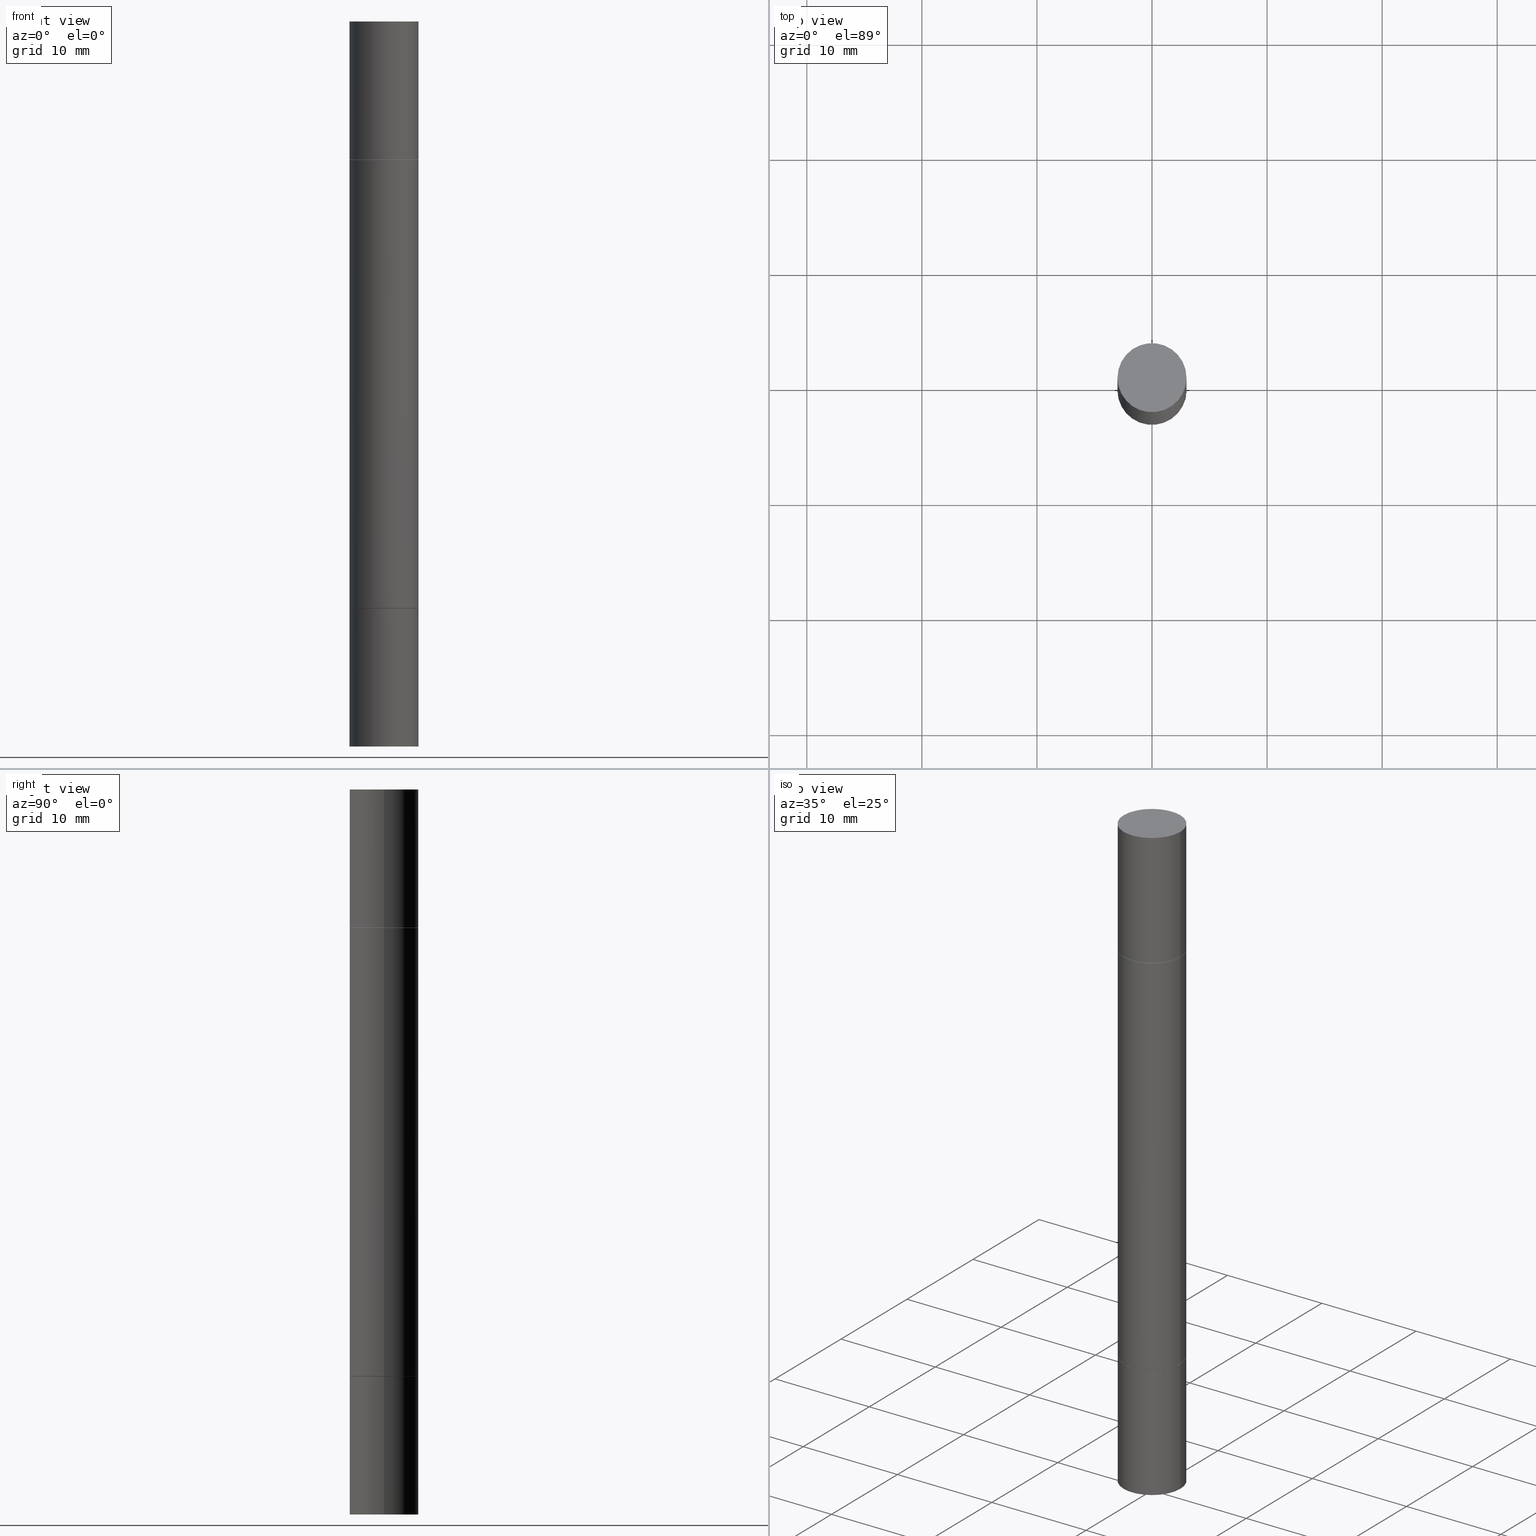
[diagram: canonical four-view strip — front | top / right | iso, engineering-drawing reading convention]
A machine part, canonical four-view strip (front | top / right | iso — engineering-drawing reading convention). The complete STEP part file that produces these views, byte-faithful:
ISO-10303-21;
HEADER;
FILE_DESCRIPTION (( 'STEP AP203' ),
    '1' );
FILE_NAME ('49061.STEP',
    '2024-03-04T15:54:00',
    ( '' ),
    ( '' ),
    'SwSTEP 2.0',
    'SolidWorks 2023',
    '' );
FILE_SCHEMA (( 'CONFIG_CONTROL_DESIGN' ));
ENDSEC;

DATA;
#1 = CARTESIAN_POINT ( 'NONE',  ( 4.910256815939135870E-29, -1.648293968897468754E-15, -0.4723999999999998756 ) ) ;
#2 = AXIS2_PLACEMENT_3D ( 'NONE', #598, #449, #675 ) ;
#3 = VECTOR ( 'NONE', #420, 39.37007874015748143 ) ;
#4 = CARTESIAN_POINT ( 'NONE',  ( 0.1180999999999999966, -7.831741791159056177E-15, -2.006899999999999906 ) ) ;
#5 = PERSON_AND_ORGANIZATION ( #347, #374 ) ;
#6 = LINE ( 'NONE', #263, #514 ) ;
#7 = DIRECTION ( 'NONE',  ( 1.000000000000000000, -6.982962677686271444E-15, 0.000000000000000000 ) ) ;
#8 = CARTESIAN_POINT ( 'NONE',  ( 0.000000000000000000, 0.000000000000000000, 0.000000000000000000 ) ) ;
#9 = CIRCLE ( 'NONE', #289, 0.1180999999999999966 ) ;
#10 = CARTESIAN_POINT ( 'NONE',  ( 4.910256815939136430E-29, -1.648293968897467768E-15, -0.4723999999999995980 ) ) ;
#11 = AXIS2_PLACEMENT_3D ( 'NONE', #199, #602, #141 ) ;
#12 = SECURITY_CLASSIFICATION ( '', '', #627 ) ;
#13 = ORIENTED_EDGE ( 'NONE', *, *, #468, .T. ) ;
#14 = DIRECTION ( 'NONE',  ( 0.000000000000000000, 1.000000000000000000, -4.626330217890374069E-15 ) ) ;
#15 = EDGE_CURVE ( 'NONE', #157, #300, #394, .T. ) ;
#16 = DIRECTION ( 'NONE',  ( -2.445468806185136597E-29, -3.492890411551752677E-15, -1.000000000000000000 ) ) ;
#17 = DIRECTION ( 'NONE',  ( 1.000000000000000000, -6.982962677686265133E-15, 0.000000000000000000 ) ) ;
#18 = EDGE_LOOP ( 'NONE', ( #62, #85 ) ) ;
#19 = CARTESIAN_POINT ( 'NONE',  ( -0.1180999999999999966, -8.415620457722018772E-16, -0.4733999999999996544 ) ) ;
#20 = ORIENTED_EDGE ( 'NONE', *, *, #137, .F. ) ;
#21 = VECTOR ( 'NONE', #271, 39.37007874015748143 ) ;
#22 = AXIS2_PLACEMENT_3D ( 'NONE', #1, #213, #462 ) ;
#23 = EDGE_CURVE ( 'NONE', #635, #71, #402, .T. ) ;
#24 = DIRECTION ( 'NONE',  ( 1.000000000000000000, -6.982962677686273021E-15, 0.000000000000000000 ) ) ;
#25 = ORIENTED_EDGE ( 'NONE', *, *, #320, .T. ) ;
#26 = ADVANCED_FACE ( 'NONE', ( #351 ), #305, .F. ) ;
#27 = CYLINDRICAL_SURFACE ( 'NONE', #302, 0.1180999999999998856 ) ;
#28 = ORIENTED_EDGE ( 'NONE', *, *, #270, .F. ) ;
#29 = DIRECTION ( 'NONE',  ( 2.438088387897959769E-29, 3.492890411551753071E-15, 1.000000000000000000 ) ) ;
#30 = DIRECTION ( 'NONE',  ( 2.445468806185136597E-29, 3.492890411551752677E-15, 1.000000000000000000 ) ) ;
#31 = EDGE_LOOP ( 'NONE', ( #381, #268, #333, #623 ) ) ;
#32 = AXIS2_PLACEMENT_3D ( 'NONE', #546, #247, #444 ) ;
#33 = VECTOR ( 'NONE', #501, 39.37007874015748143 ) ;
#34 = LINE ( 'NONE', #41, #136 ) ;
#35 = LOCAL_TIME ( 10, 54, 0.000000000000000000, #72 ) ;
#36 = DIRECTION ( 'NONE',  ( 1.000000000000000000, -6.982962677686266711E-15, 0.000000000000000000 ) ) ;
#37 = VERTEX_POINT ( 'NONE', #254 ) ;
#38 = EDGE_CURVE ( 'NONE', #399, #566, #173, .T. ) ;
#39 = DIRECTION ( 'NONE',  ( -2.445468806185136877E-29, -3.492890411551753071E-15, -1.000000000000000000 ) ) ;
#40 = ORIENTED_EDGE ( 'NONE', *, *, #261, .T. ) ;
#41 = CARTESIAN_POINT ( 'NONE',  ( 0.1180999999999999966, -8.246878922347480654E-16, 5.758764772215000440E-30 ) ) ;
#42 = DIRECTION ( 'NONE',  ( -2.445468806185136597E-29, 3.491481338843145583E-15, 1.000000000000000000 ) ) ;
#43 = EDGE_LOOP ( 'NONE', ( #599, #180, #335, #591 ) ) ;
#44 = ORIENTED_EDGE ( 'NONE', *, *, #320, .F. ) ;
#45 = CIRCLE ( 'NONE', #280, 0.1170999999999999958 ) ;
#46 = AXIS2_PLACEMENT_3D ( 'NONE', #596, #321, #425 ) ;
#47 = EDGE_CURVE ( 'NONE', #656, #566, #316, .T. ) ;
#48 = CARTESIAN_POINT ( 'NONE',  ( 4.910256815939135870E-29, -7.010545380263151710E-15, -2.007899999999999796 ) ) ;
#49 = ORIENTED_EDGE ( 'NONE', *, *, #205, .T. ) ;
#50 = APPLICATION_PROTOCOL_DEFINITION ( 'international standard', 'config_control_design', 1994, #344 ) ;
#51 = DIRECTION ( 'NONE',  ( -2.445468806185136877E-29, -3.492890411551753071E-15, -1.000000000000000000 ) ) ;
#52 = VERTEX_POINT ( 'NONE', #4 ) ;
#53 = PERSON_AND_ORGANIZATION_ROLE ( 'creator' ) ;
#54 = DIRECTION ( 'NONE',  ( -2.445468806185136877E-29, -3.492890411551753071E-15, -1.000000000000000000 ) ) ;
#55 = APPROVAL_ROLE ( '' ) ;
#56 = CARTESIAN_POINT ( 'NONE',  ( 4.910256815939135870E-29, -7.010545380263151710E-15, -2.007899999999999796 ) ) ;
#57 = VECTOR ( 'NONE', #625, 39.37007874015748143 ) ;
#58 = CIRCLE ( 'NONE', #218, 0.1180999999999999966 ) ;
#59 = DIRECTION ( 'NONE',  ( -2.438088387897959769E-29, -3.492890411551753071E-15, -1.000000000000000000 ) ) ;
#60 = DATE_TIME_ROLE ( 'creation_date' ) ;
#61 = DIRECTION ( 'NONE',  ( 1.000000000000000000, -6.982962677686264344E-15, 0.000000000000000000 ) ) ;
#62 = ORIENTED_EDGE ( 'NONE', *, *, #510, .T. ) ;
#63 = CALENDAR_DATE ( 2024, 4, 3 ) ;
#64 = EDGE_CURVE ( 'NONE', #357, #426, #220, .T. ) ;
#65 = CARTESIAN_POINT ( 'NONE',  ( 4.910256815939136430E-29, -7.010545380263152499E-15, -2.007900000000000240 ) ) ;
#66 = ORIENTED_EDGE ( 'NONE', *, *, #327, .F. ) ;
#67 = EDGE_CURVE ( 'NONE', #426, #232, #502, .T. ) ;
#68 = VECTOR ( 'NONE', #212, 39.37007874015748143 ) ;
#69 = LINE ( 'NONE', #366, #115 ) ;
#70 = VECTOR ( 'NONE', #39, 39.37007874015748143 ) ;
#71 = VERTEX_POINT ( 'NONE', #267 ) ;
#72 = COORDINATED_UNIVERSAL_TIME_OFFSET ( 5, 0, .BEHIND. ) ;
#73 = DIRECTION ( 'NONE',  ( 1.000000000000000000, -6.982962677686271444E-15, 0.000000000000000000 ) ) ;
#74 = DIRECTION ( 'NONE',  ( -2.445468806185136597E-29, -3.492890411551752677E-15, -1.000000000000000000 ) ) ;
#75 = CARTESIAN_POINT ( 'NONE',  ( 0.1180999999999999966, -2.476474751543767778E-15, -0.4733999999999996544 ) ) ;
#76 = ORIENTED_EDGE ( 'NONE', *, *, #439, .T. ) ;
#77 = FACE_OUTER_BOUND ( 'NONE', #88, .T. ) ;
#78 = ORIENTED_EDGE ( 'NONE', *, *, #47, .F. ) ;
#79 = CIRCLE ( 'NONE', #356, 0.1170999999999999958 ) ;
#80 = CARTESIAN_POINT ( 'NONE',  ( 0.1180999999999999966, -9.484609056967403598E-15, -2.480300000000000171 ) ) ;
#81 = EDGE_LOOP ( 'NONE', ( #472, #584, #171, #651 ) ) ;
#82 = FACE_OUTER_BOUND ( 'NONE', #490, .T. ) ;
#83 = DIRECTION ( 'NONE',  ( -1.000000000000000000, 6.982962677686265922E-15, -4.876176775795935793E-29 ) ) ;
#84 = ADVANCED_FACE ( 'NONE', ( #414 ), #214, .F. ) ;
#85 = ORIENTED_EDGE ( 'NONE', *, *, #353, .T. ) ;
#86 = ADVANCED_FACE ( 'NONE', ( #308 ), #209, .T. ) ;
#87 = PLANE ( 'NONE',  #174 ) ;
#88 = EDGE_LOOP ( 'NONE', ( #445, #235 ) ) ;
#89 = CIRCLE ( 'NONE', #182, 0.1180999999999999966 ) ;
#90 = VECTOR ( 'NONE', #436, 39.37007874015748143 ) ;
#91 = AXIS2_PLACEMENT_3D ( 'NONE', #345, #29, #246 ) ;
#92 = CARTESIAN_POINT ( 'NONE',  ( 0.000000000000000000, -8.661668626252231138E-15, -2.480299999999999727 ) ) ;
#93 = DIRECTION ( 'NONE',  ( 2.445468806185136597E-29, 3.492890411551752677E-15, 1.000000000000000000 ) ) ;
#94 = EDGE_LOOP ( 'NONE', ( #230, #66 ) ) ;
#95 = FACE_OUTER_BOUND ( 'NONE', #521, .T. ) ;
#96 = ORIENTED_EDGE ( 'NONE', *, *, #224, .T. ) ;
#97 = CARTESIAN_POINT ( 'NONE',  ( -0.1170999999999999958, -6.173201382339852908E-15, -2.007899999999999796 ) ) ;
#98 = CARTESIAN_POINT ( 'NONE',  ( 0.1180999999999998856, -9.486356518486979401E-15, -2.480299999999999727 ) ) ;
#99 = CARTESIAN_POINT ( 'NONE',  ( 8.246878922347970734E-16, 0.1180999999999983452, -0.4723999999999998756 ) ) ;
#100 = CLOSED_SHELL ( 'NONE', ( #638, #642, #253, #296 ) ) ;
#101 = DIRECTION ( 'NONE',  ( 1.000000000000000000, -6.982962677686265133E-15, 0.000000000000000000 ) ) ;
#102 = AXIS2_PLACEMENT_3D ( 'NONE', #151, #337, #499 ) ;
#103 = CC_DESIGN_APPROVAL ( #367, ( #662 ) ) ;
#104 = DIRECTION ( 'NONE',  ( 1.000000000000000000, -6.982962677686264344E-15, 0.000000000000000000 ) ) ;
#105 = CARTESIAN_POINT ( 'NONE',  ( 0.1180999999999999966, -9.486356518486979401E-15, -2.480299999999999727 ) ) ;
#106 = APPROVAL_DATE_TIME ( #162, #108 ) ;
#107 = FACE_OUTER_BOUND ( 'NONE', #392, .T. ) ;
#108 = APPROVAL ( #215, 'UNSPECIFIED' ) ;
#109 = DIRECTION ( 'NONE',  ( 1.000000000000000000, -6.982962677686265922E-15, 9.839502134516470631E-33 ) ) ;
#110 = CARTESIAN_POINT ( 'NONE',  ( -0.1180999999999999966, 8.391509709326782957E-16, -5.809262341591043784E-30 ) ) ;
#111 = EDGE_CURVE ( 'NONE', #566, #399, #9, .T. ) ;
#112 = CARTESIAN_POINT ( 'NONE',  ( 4.910256815939135870E-29, -1.648293968897468754E-15, -0.4723999999999998756 ) ) ;
#113 = EDGE_CURVE ( 'NONE', #71, #497, #341, .T. ) ;
#114 = LENGTH_MEASURE_WITH_UNIT ( LENGTH_MEASURE( 0.02539999999999999897 ), #466 );
#115 = VECTOR ( 'NONE', #360, 39.37007874015748143 ) ;
#116 = CONICAL_SURFACE ( 'NONE', #22, 0.1170999999999999958, 0.7853981633975507526 ) ;
#117 = FACE_OUTER_BOUND ( 'NONE', #31, .T. ) ;
#118 = FACE_OUTER_BOUND ( 'NONE', #197, .T. ) ;
#119 = CALENDAR_DATE ( 2024, 4, 3 ) ;
#120 = FACE_OUTER_BOUND ( 'NONE', #139, .T. ) ;
#121 = EDGE_LOOP ( 'NONE', ( #509, #536, #603, #665 ) ) ;
#122 = EDGE_CURVE ( 'NONE', #497, #71, #89, .T. ) ;
#123 = DIRECTION ( 'NONE',  ( -2.445468806185136877E-29, -3.492890411551753071E-15, -1.000000000000000000 ) ) ;
#124 = DATE_AND_TIME ( #119, #648 ) ;
#125 = AXIS2_PLACEMENT_3D ( 'NONE', #187, #476, #17 ) ;
#126 = PLANE ( 'NONE',  #290 ) ;
#127 = AXIS2_PLACEMENT_3D ( 'NONE', #8, #358, #210 ) ;
#128 = AXIS2_PLACEMENT_3D ( 'NONE', #396, #610, #349 ) ;
#129 = ORIENTED_EDGE ( 'NONE', *, *, #439, .F. ) ;
#130 = LINE ( 'NONE', #325, #90 ) ;
#131 = DIRECTION ( 'NONE',  ( 1.000000000000000000, -6.982962677686265133E-15, 0.000000000000000000 ) ) ;
#132 = ORIENTED_EDGE ( 'NONE', *, *, #512, .F. ) ;
#133 = CARTESIAN_POINT ( 'NONE',  ( 8.246878922347970734E-16, 0.1180999999999929745, -2.007900000000000684 ) ) ;
#134 = ORIENTED_EDGE ( 'NONE', *, *, #47, .T. ) ;
#135 = CIRCLE ( 'NONE', #318, 0.1170999999999999958 ) ;
#136 = VECTOR ( 'NONE', #240, 39.37007874015748143 ) ;
#137 = EDGE_CURVE ( 'NONE', #168, #357, #69, .T. ) ;
#138 = CARTESIAN_POINT ( 'NONE',  ( 0.000000000000000000, -8.661668626252231138E-15, -2.480299999999999727 ) ) ;
#139 = EDGE_LOOP ( 'NONE', ( #379, #506 ) ) ;
#140 = EDGE_CURVE ( 'NONE', #168, #547, #45, .T. ) ;
#141 = DIRECTION ( 'NONE',  ( 1.000000000000000000, -6.982962677686265133E-15, 0.000000000000000000 ) ) ;
#142 = ORIENTED_EDGE ( 'NONE', *, *, #158, .T. ) ;
#143 = CARTESIAN_POINT ( 'NONE',  ( 0.1170999999999999958, -2.465998898454530016E-15, -0.4723999999999998756 ) ) ;
#144 = ORIENTED_EDGE ( 'NONE', *, *, #508, .T. ) ;
#145 = AXIS2_PLACEMENT_3D ( 'NONE', #112, #259, #460 ) ;
#146 = CARTESIAN_POINT ( 'NONE',  ( -0.1180999999999999966, -1.304844015212474234E-17, 5.463695987328556019E-16 ) ) ;
#147 = CYLINDRICAL_SURFACE ( 'NONE', #647, 0.1180999999999999966 ) ;
#148 = EDGE_LOOP ( 'NONE', ( #188, #134, #448, #434 ) ) ;
#149 = EDGE_CURVE ( 'NONE', #300, #157, #455, .T. ) ;
#150 = CARTESIAN_POINT ( 'NONE',  ( 0.1180999999999999966, -8.229404307151675296E-16, 5.463695987328526437E-16 ) ) ;
#151 = CARTESIAN_POINT ( 'NONE',  ( 8.246878922348086105E-16, 0.1181000000000000105, 0.000000000000000000 ) ) ;
#152 = DIRECTION ( 'NONE',  ( 1.000000000000000000, -6.982962677686264344E-15, 0.000000000000000000 ) ) ;
#153 = DIRECTION ( 'NONE',  ( -2.445468806185136597E-29, 3.491481338843145583E-15, 1.000000000000000000 ) ) ;
#154 = ORIENTED_EDGE ( 'NONE', *, *, #64, .F. ) ;
#155 = CIRCLE ( 'NONE', #516, 0.1180999999999999966 ) ;
#156 = LOCAL_TIME ( 10, 54, 0.000000000000000000, #678 ) ;
#157 = VERTEX_POINT ( 'NONE', #219 ) ;
#158 = EDGE_CURVE ( 'NONE', #37, #237, #6, .T. ) ;
#159 = CARTESIAN_POINT ( 'NONE',  ( 0.1180999999999999966, -8.229404307151675296E-16, 5.463695987328526437E-16 ) ) ;
#160 = DIRECTION ( 'NONE',  ( 1.000000000000000000, -6.982962677686265133E-15, 0.000000000000000000 ) ) ;
#161 = LINE ( 'NONE', #362, #418 ) ;
#162 = DATE_AND_TIME ( #257, #186 ) ;
#163 = CONICAL_SURFACE ( 'NONE', #2, 0.1170999999999999958, 0.7853981633975507526 ) ;
#164 = DIRECTION ( 'NONE',  ( 1.000000000000000000, -6.982962677686265133E-15, 0.000000000000000000 ) ) ;
#165 = MANIFOLD_SOLID_BREP ( 'Mirror1[3]', #100 ) ;
#166 =( NAMED_UNIT ( * ) SI_UNIT ( $, .STERADIAN. ) SOLID_ANGLE_UNIT ( ) );
#167 = CARTESIAN_POINT ( 'NONE',  ( 3.032748139990496817E-29, -4.329960582366326879E-15, -1.240149999999999864 ) ) ;
#168 = VERTEX_POINT ( 'NONE', #629 ) ;
#169 = EDGE_CURVE ( 'NONE', #545, #399, #161, .T. ) ;
#170 = DIRECTION ( 'NONE',  ( 1.000000000000000000, -6.982962677686265133E-15, 0.000000000000000000 ) ) ;
#171 = ORIENTED_EDGE ( 'NONE', *, *, #618, .T. ) ;
#172 = ADVANCED_BREP_SHAPE_REPRESENTATION ( '49061', ( #365, #617, #165, #592, #369, #127 ), #238 ) ;
#173 = CIRCLE ( 'NONE', #226, 0.1180999999999999966 ) ;
#174 = AXIS2_PLACEMENT_3D ( 'NONE', #288, #667, #192 ) ;
#175 = FACE_OUTER_BOUND ( 'NONE', #504, .T. ) ;
#176 = ORIENTED_EDGE ( 'NONE', *, *, #169, .T. ) ;
#177 = CARTESIAN_POINT ( 'NONE',  ( 6.065496279980994755E-29, 1.747461519580534218E-18, 5.463695987328526437E-16 ) ) ;
#178 = ORIENTED_EDGE ( 'NONE', *, *, #413, .T. ) ;
#179 = CARTESIAN_POINT ( 'NONE',  ( 0.1170999999999999958, -2.465998898454530016E-15, -0.4723999999999998756 ) ) ;
#180 = ORIENTED_EDGE ( 'NONE', *, *, #652, .F. ) ;
#181 = FACE_OUTER_BOUND ( 'NONE', #370, .T. ) ;
#182 = AXIS2_PLACEMENT_3D ( 'NONE', #513, #626, #160 ) ;
#183 = ORIENTED_EDGE ( 'NONE', *, *, #613, .T. ) ;
#184 = AXIS2_PLACEMENT_3D ( 'NONE', #446, #393, #354 ) ;
#185 = ADVANCED_FACE ( 'NONE', ( #117 ), #475, .T. ) ;
#186 = LOCAL_TIME ( 10, 54, 0.000000000000000000, #412 ) ;
#187 = CARTESIAN_POINT ( 'NONE',  ( 4.910256815939136430E-29, -7.010545380263152499E-15, -2.007900000000000240 ) ) ;
#188 = ORIENTED_EDGE ( 'NONE', *, *, #353, .F. ) ;
#189 = CARTESIAN_POINT ( 'NONE',  ( 4.907811347132950827E-29, -1.651786859309018332E-15, -0.4733999999999996544 ) ) ;
#190 = EDGE_LOOP ( 'NONE', ( #348, #76 ) ) ;
#191 = DIRECTION ( 'NONE',  ( 1.000000000000000000, -6.982962677686266711E-15, 0.000000000000000000 ) ) ;
#192 = DIRECTION ( 'NONE',  ( 1.000000000000000000, -6.982962677686265922E-15, 9.839502134516470631E-33 ) ) ;
#193 = DIRECTION ( 'NONE',  ( -2.445468806185136877E-29, -3.492890411551753071E-15, -1.000000000000000000 ) ) ;
#194 = CIRCLE ( 'NONE', #32, 0.1180999999999999966 ) ;
#195 = AXIS2_PLACEMENT_3D ( 'NONE', #674, #600, #101 ) ;
#196 = FACE_OUTER_BOUND ( 'NONE', #18, .T. ) ;
#197 = EDGE_LOOP ( 'NONE', ( #20, #661, #477, #552 ) ) ;
#198 = PLANE ( 'NONE',  #91 ) ;
#199 = CARTESIAN_POINT ( 'NONE',  ( 0.000000000000000000, -8.661668626252231138E-15, -2.480299999999999727 ) ) ;
#200 = APPLICATION_CONTEXT ( 'configuration controlled 3d designs of mechanical parts and assemblies' ) ;
#201 = DIRECTION ( 'NONE',  ( 2.438088387897959769E-29, 3.492890411551753071E-15, 1.000000000000000000 ) ) ;
#202 = FACE_OUTER_BOUND ( 'NONE', #287, .T. ) ;
#203 = DIRECTION ( 'NONE',  ( 2.445468806185136597E-29, 3.492890411551752677E-15, 1.000000000000000000 ) ) ;
#204 = ADVANCED_FACE ( 'NONE', ( #120 ), #523, .F. ) ;
#205 = EDGE_CURVE ( 'NONE', #250, #37, #301, .T. ) ;
#206 = VECTOR ( 'NONE', #378, 39.37007874015748143 ) ;
#207 = PERSON_AND_ORGANIZATION ( #347, #374 ) ;
#208 = LOCAL_TIME ( 10, 54, 0.000000000000000000, #575 ) ;
#209 = CYLINDRICAL_SURFACE ( 'NONE', #581, 0.1180999999999998856 ) ;
#210 = DIRECTION ( 'NONE',  ( 1.000000000000000000, 0.000000000000000000, 0.000000000000000000 ) ) ;
#211 = LINE ( 'NONE', #410, #57 ) ;
#212 = DIRECTION ( 'NONE',  ( -2.445468806185136877E-29, -3.492890411551753071E-15, -1.000000000000000000 ) ) ;
#213 = DIRECTION ( 'NONE',  ( -2.445468806185136597E-29, -3.492890411551752677E-15, -1.000000000000000000 ) ) ;
#214 = PLANE ( 'NONE',  #645 ) ;
#215 = APPROVAL_STATUS ( 'not_yet_approved' ) ;
#216 = AXIS2_PLACEMENT_3D ( 'NONE', #65, #421, #637 ) ;
#217 = CIRCLE ( 'NONE', #492, 0.1180999999999999966 ) ;
#218 = AXIS2_PLACEMENT_3D ( 'NONE', #487, #243, #191 ) ;
#219 = CARTESIAN_POINT ( 'NONE',  ( -0.1170999999999999958, -8.432458495653122039E-16, -0.4723999999999998756 ) ) ;
#220 = LINE ( 'NONE', #416, #470 ) ;
#221 = CARTESIAN_POINT ( 'NONE',  ( 6.065496279980994755E-29, -8.659921164732655335E-15, -2.480300000000000171 ) ) ;
#222 = ORIENTED_EDGE ( 'NONE', *, *, #15, .T. ) ;
#223 = EDGE_CURVE ( 'NONE', #232, #426, #559, .T. ) ;
#224 = EDGE_CURVE ( 'NONE', #300, #250, #236, .T. ) ;
#225 = DATE_TIME_ROLE ( 'classification_date' ) ;
#226 = AXIS2_PLACEMENT_3D ( 'NONE', #453, #203, #515 ) ;
#227 = CIRCLE ( 'NONE', #319, 0.1180999999999999966 ) ;
#228 = DIRECTION ( 'NONE',  ( 1.000000000000000000, -6.982962677686271444E-15, 0.000000000000000000 ) ) ;
#229 = DESIGN_CONTEXT ( 'detailed design', #200, 'design' ) ;
#230 = ORIENTED_EDGE ( 'NONE', *, *, #295, .F. ) ;
#231 = CYLINDRICAL_SURFACE ( 'NONE', #46, 0.1180999999999999966 ) ;
#232 = VERTEX_POINT ( 'NONE', #322 ) ;
#233 = PRODUCT_RELATED_PRODUCT_CATEGORY ( 'detail', '', ( #307 ) ) ;
#234 = CARTESIAN_POINT ( 'NONE',  ( 0.000000000000000000, -8.661668626252231138E-15, -2.480299999999999727 ) ) ;
#235 = ORIENTED_EDGE ( 'NONE', *, *, #122, .F. ) ;
#236 = LINE ( 'NONE', #179, #206 ) ;
#237 = VERTEX_POINT ( 'NONE', #530 ) ;
#238 =( GEOMETRIC_REPRESENTATION_CONTEXT ( 3 ) GLOBAL_UNCERTAINTY_ASSIGNED_CONTEXT ( ( #422 ) ) GLOBAL_UNIT_ASSIGNED_CONTEXT ( ( #255, #454, #166 ) ) REPRESENTATION_CONTEXT ( 'NONE', 'WORKASPACE' ) );
#239 = CALENDAR_DATE ( 2024, 4, 3 ) ;
#240 = DIRECTION ( 'NONE',  ( -2.445468806185136877E-29, 3.491481338843145188E-15, 1.000000000000000000 ) ) ;
#241 = CARTESIAN_POINT ( 'NONE',  ( 4.907811347132950827E-29, -1.651786859309018332E-15, -0.4733999999999996544 ) ) ;
#242 = ORIENTED_EDGE ( 'NONE', *, *, #223, .F. ) ;
#243 = DIRECTION ( 'NONE',  ( 2.445468806185136597E-29, 3.492890411551752677E-15, 1.000000000000000000 ) ) ;
#244 = CARTESIAN_POINT ( 'NONE',  ( -0.1180999999999999966, -7.851443812715413599E-15, -2.480299999999999727 ) ) ;
#245 = ORIENTED_EDGE ( 'NONE', *, *, #532, .F. ) ;
#246 = DIRECTION ( 'NONE',  ( -1.000000000000000000, 6.982962677686265922E-15, -9.839502134516470631E-33 ) ) ;
#247 = DIRECTION ( 'NONE',  ( -2.445468806185136597E-29, 3.491481338843145583E-15, 1.000000000000000000 ) ) ;
#248 = ORIENTED_EDGE ( 'NONE', *, *, #676, .T. ) ;
#249 = DIRECTION ( 'NONE',  ( -2.445468806185136597E-29, 3.491481338843145583E-15, 1.000000000000000000 ) ) ;
#250 = VERTEX_POINT ( 'NONE', #75 ) ;
#251 = LINE ( 'NONE', #577, #3 ) ;
#252 = CARTESIAN_POINT ( 'NONE',  ( -0.1180999999999998856, -2.180648907300854672E-15, -1.240149999999999864 ) ) ;
#253 = ADVANCED_FACE ( 'NONE', ( #77 ), #282, .F. ) ;
#254 = CARTESIAN_POINT ( 'NONE',  ( -0.1180999999999999966, -8.415620457722018772E-16, -0.4733999999999996544 ) ) ;
#255 =( CONVERSION_BASED_UNIT ( 'INCH', #114 ) LENGTH_UNIT ( ) NAMED_UNIT ( #615 ) );
#256 = DIRECTION ( 'NONE',  ( 1.000000000000000000, -6.982962677686271444E-15, 0.000000000000000000 ) ) ;
#257 = CALENDAR_DATE ( 2024, 4, 3 ) ;
#258 = APPROVAL_PERSON_ORGANIZATION ( #375, #423, #529 ) ;
#259 = DIRECTION ( 'NONE',  ( 2.445468806185136597E-29, 3.492890411551752677E-15, 1.000000000000000000 ) ) ;
#260 = PERSON_AND_ORGANIZATION ( #347, #374 ) ;
#261 = EDGE_CURVE ( 'NONE', #620, #294, #560, .T. ) ;
#262 = CARTESIAN_POINT ( 'NONE',  ( -0.1180999999999999966, -1.304844015212474234E-17, -0.4723999999999995980 ) ) ;
#263 = CARTESIAN_POINT ( 'NONE',  ( -0.1180999999999998856, -7.851443812715415176E-15, -2.480299999999999727 ) ) ;
#264 = ORIENTED_EDGE ( 'NONE', *, *, #676, .F. ) ;
#265 = APPROVAL_ROLE ( '' ) ;
#266 = DIRECTION ( 'NONE',  ( -2.445468806185136597E-29, 3.491481338843145583E-15, 1.000000000000000000 ) ) ;
#267 = CARTESIAN_POINT ( 'NONE',  ( 0.1180999999999999966, -2.472981861132215636E-15, -0.4723999999999995980 ) ) ;
#268 = ORIENTED_EDGE ( 'NONE', *, *, #205, .F. ) ;
#269 = CLOSED_SHELL ( 'NONE', ( #459, #467, #26, #339 ) ) ;
#270 = EDGE_CURVE ( 'NONE', #465, #52, #130, .T. ) ;
#271 = DIRECTION ( 'NONE',  ( -2.445468806185136877E-29, 3.491481338843145188E-15, 1.000000000000000000 ) ) ;
#272 = AXIS2_PLACEMENT_3D ( 'NONE', #221, #540, #24 ) ;
#273 = CC_DESIGN_PERSON_AND_ORGANIZATION_ASSIGNMENT ( #517, #364, ( #307 ) ) ;
#274 = DIRECTION ( 'NONE',  ( -0.000000000000000000, -3.492185875197449130E-15, -1.000000000000000000 ) ) ;
#275 = APPROVAL_STATUS ( 'not_yet_approved' ) ;
#276 = CARTESIAN_POINT ( 'NONE',  ( 8.246878922347970734E-16, 0.1180999999999983452, -0.4723999999999998756 ) ) ;
#277 = ADVANCED_FACE ( 'NONE', ( #334 ), #126, .F. ) ;
#278 = DIRECTION ( 'NONE',  ( -2.445468806185136597E-29, 3.491481338843145583E-15, 1.000000000000000000 ) ) ;
#279 = EDGE_LOOP ( 'NONE', ( #129, #178, #672, #483 ) ) ;
#280 = AXIS2_PLACEMENT_3D ( 'NONE', #569, #576, #61 ) ;
#281 = AXIS2_PLACEMENT_3D ( 'NONE', #404, #571, #519 ) ;
#282 = PLANE ( 'NONE',  #582 ) ;
#283 = ORIENTED_EDGE ( 'NONE', *, *, #564, .T. ) ;
#284 = DIRECTION ( 'NONE',  ( 1.000000000000000000, -6.982962677686265133E-15, 0.000000000000000000 ) ) ;
#285 = EDGE_LOOP ( 'NONE', ( #556, #377 ) ) ;
#286 = CARTESIAN_POINT ( 'NONE',  ( -0.1180999999999999966, -6.996082301565225720E-15, -2.480300000000000171 ) ) ;
#287 = EDGE_LOOP ( 'NONE', ( #298, #597, #96, #49 ) ) ;
#288 = CARTESIAN_POINT ( 'NONE',  ( 4.910256815939136430E-29, -1.648293968897467768E-15, -0.4723999999999995980 ) ) ;
#289 = AXIS2_PLACEMENT_3D ( 'NONE', #633, #640, #164 ) ;
#290 = AXIS2_PLACEMENT_3D ( 'NONE', #133, #331, #580 ) ;
#291 = ORIENTED_EDGE ( 'NONE', *, *, #149, .T. ) ;
#292 = FACE_OUTER_BOUND ( 'NONE', #190, .T. ) ;
#293 = FACE_OUTER_BOUND ( 'NONE', #285, .T. ) ;
#294 = VERTEX_POINT ( 'NONE', #660 ) ;
#295 = EDGE_CURVE ( 'NONE', #326, #388, #471, .T. ) ;
#296 = ADVANCED_FACE ( 'NONE', ( #433 ), #231, .T. ) ;
#297 = FACE_OUTER_BOUND ( 'NONE', #148, .T. ) ;
#298 = ORIENTED_EDGE ( 'NONE', *, *, #303, .F. ) ;
#299 = FACE_OUTER_BOUND ( 'NONE', #81, .T. ) ;
#300 = VERTEX_POINT ( 'NONE', #430 ) ;
#301 = CIRCLE ( 'NONE', #382, 0.1180999999999999966 ) ;
#302 = AXIS2_PLACEMENT_3D ( 'NONE', #234, #376, #228 ) ;
#303 = EDGE_CURVE ( 'NONE', #157, #37, #644, .T. ) ;
#304 = PLANE ( 'NONE',  #102 ) ;
#305 = PLANE ( 'NONE',  #572 ) ;
#306 = PERSON_AND_ORGANIZATION ( #347, #374 ) ;
#307 = PRODUCT ( '49061', '49061', '', ( #415 ) ) ;
#308 = FACE_OUTER_BOUND ( 'NONE', #385, .T. ) ;
#309 = DIRECTION ( 'NONE',  ( -0.000000000000000000, -3.492185875197449130E-15, -1.000000000000000000 ) ) ;
#310 = CC_DESIGN_DATE_AND_TIME_ASSIGNMENT ( #403, #60, ( #662 ) ) ;
#311 = AXIS2_PLACEMENT_3D ( 'NONE', #628, #621, #315 ) ;
#312 = DATE_AND_TIME ( #570, #208 ) ;
#313 = CARTESIAN_POINT ( 'NONE',  ( 0.000000000000000000, -8.661668626252231138E-15, -2.480299999999999727 ) ) ;
#314 = ORIENTED_EDGE ( 'NONE', *, *, #630, .F. ) ;
#315 = DIRECTION ( 'NONE',  ( 1.000000000000000000, -6.982962677686264344E-15, 0.000000000000000000 ) ) ;
#316 = LINE ( 'NONE', #456, #68 ) ;
#317 = DIRECTION ( 'NONE',  ( 1.000000000000000000, -6.982962677686265133E-15, 0.000000000000000000 ) ) ;
#318 = AXIS2_PLACEMENT_3D ( 'NONE', #489, #30, #496 ) ;
#319 = AXIS2_PLACEMENT_3D ( 'NONE', #397, #611, #36 ) ;
#320 = EDGE_CURVE ( 'NONE', #237, #52, #435, .T. ) ;
#321 = DIRECTION ( 'NONE',  ( -2.445468806185136597E-29, -3.492890411551752677E-15, -1.000000000000000000 ) ) ;
#322 = CARTESIAN_POINT ( 'NONE',  ( 0.1180999999999998856, -3.815561613072418896E-15, -1.240149999999999864 ) ) ;
#323 = EDGE_LOOP ( 'NONE', ( #291, #222 ) ) ;
#324 = DIRECTION ( 'NONE',  ( -2.445468806185136597E-29, 3.491481338843145583E-15, 1.000000000000000000 ) ) ;
#325 = CARTESIAN_POINT ( 'NONE',  ( 0.1170999999999999958, -7.828250309820213170E-15, -2.007899999999999796 ) ) ;
#326 = VERTEX_POINT ( 'NONE', #80 ) ;
#327 = EDGE_CURVE ( 'NONE', #388, #326, #457, .T. ) ;
#328 = FACE_OUTER_BOUND ( 'NONE', #646, .T. ) ;
#329 = AXIS2_PLACEMENT_3D ( 'NONE', #10, #411, #170 ) ;
#330 = AXIS2_PLACEMENT_3D ( 'NONE', #553, #42, #340 ) ;
#331 = DIRECTION ( 'NONE',  ( 2.438088387897960049E-29, -3.491481338843145188E-15, -1.000000000000000000 ) ) ;
#332 = AXIS2_PLACEMENT_3D ( 'NONE', #643, #324, #534 ) ;
#333 = ORIENTED_EDGE ( 'NONE', *, *, #400, .T. ) ;
#334 = FACE_OUTER_BOUND ( 'NONE', #486, .T. ) ;
#335 = ORIENTED_EDGE ( 'NONE', *, *, #23, .T. ) ;
#336 = CC_DESIGN_DATE_AND_TIME_ASSIGNMENT ( #586, #225, ( #12 ) ) ;
#337 = DIRECTION ( 'NONE',  ( 2.438088387897959769E-29, 3.492890411551753071E-15, 1.000000000000000000 ) ) ;
#338 = ORIENTED_EDGE ( 'NONE', *, *, #261, .F. ) ;
#339 = ADVANCED_FACE ( 'NONE', ( #181 ), #544, .T. ) ;
#340 = DIRECTION ( 'NONE',  ( 1.000000000000000000, -6.982962677686266711E-15, 4.876176775795936353E-29 ) ) ;
#341 = CIRCLE ( 'NONE', #329, 0.1180999999999999966 ) ;
#342 = ORIENTED_EDGE ( 'NONE', *, *, #532, .T. ) ;
#343 = AXIS2_PLACEMENT_3D ( 'NONE', #92, #495, #390 ) ;
#344 = APPLICATION_CONTEXT ( 'configuration controlled 3d designs of mechanical parts and assemblies' ) ;
#345 = CARTESIAN_POINT ( 'NONE',  ( 8.246878922348086105E-16, 0.1181000000000000105, 0.000000000000000000 ) ) ;
#346 = CARTESIAN_POINT ( 'NONE',  ( 6.065496279980994755E-29, 1.747461519580534218E-18, 5.463695987328526437E-16 ) ) ;
#347 = PERSON ( 'UNSPECIFIED', 'UNSPECIFIED', 'UNSPECIFIED', ('UNSPECIFIED'), ('UNSPECIFIED'), ('UNSPECIFIED') ) ;
#348 = ORIENTED_EDGE ( 'NONE', *, *, #652, .T. ) ;
#349 = DIRECTION ( 'NONE',  ( 1.000000000000000000, -6.982962677686264344E-15, 0.000000000000000000 ) ) ;
#350 = DIRECTION ( 'NONE',  ( 2.445468806185136597E-29, 3.492890411551752677E-15, 1.000000000000000000 ) ) ;
#351 = FACE_OUTER_BOUND ( 'NONE', #533, .T. ) ;
#352 = CC_DESIGN_PERSON_AND_ORGANIZATION_ASSIGNMENT ( #306, #53, ( #550 ) ) ;
#353 = EDGE_CURVE ( 'NONE', #656, #545, #155, .T. ) ;
#354 = DIRECTION ( 'NONE',  ( 1.000000000000000000, -6.982962677686265133E-15, 0.000000000000000000 ) ) ;
#355 = ORIENTED_EDGE ( 'NONE', *, *, #270, .T. ) ;
#356 = AXIS2_PLACEMENT_3D ( 'NONE', #48, #249, #104 ) ;
#357 = VERTEX_POINT ( 'NONE', #19 ) ;
#358 = DIRECTION ( 'NONE',  ( 0.000000000000000000, 0.000000000000000000, 1.000000000000000000 ) ) ;
#359 = CC_DESIGN_PERSON_AND_ORGANIZATION_ASSIGNMENT ( #260, #636, ( #12 ) ) ;
#360 = DIRECTION ( 'NONE',  ( -0.7071067811866199593, 2.381258160592016740E-15, -0.7071067811864750752 ) ) ;
#361 = APPROVAL_STATUS ( 'not_yet_approved' ) ;
#362 = CARTESIAN_POINT ( 'NONE',  ( 0.1180999999999999966, -9.486356518486979401E-15, -2.480299999999999727 ) ) ;
#363 = AXIS2_PLACEMENT_3D ( 'NONE', #384, #590, #83 ) ;
#364 = PERSON_AND_ORGANIZATION_ROLE ( 'design_owner' ) ;
#365 = MANIFOLD_SOLID_BREP ( 'Body-Move/Copy2[1]', #632 ) ;
#366 = CARTESIAN_POINT ( 'NONE',  ( -0.1170999999999999958, -8.449296533584223333E-16, -0.4723999999999998756 ) ) ;
#367 = APPROVAL ( #361, 'UNSPECIFIED' ) ;
#368 = CARTESIAN_POINT ( 'NONE',  ( 4.907811347132950827E-29, -1.651786859309018332E-15, -0.4733999999999996544 ) ) ;
#369 = MANIFOLD_SOLID_BREP ( 'Combine1', #604 ) ;
#370 = EDGE_LOOP ( 'NONE', ( #78, #541, #176, #429 ) ) ;
#371 = ADVANCED_FACE ( 'NONE', ( #175 ), #27, .T. ) ;
#372 = CARTESIAN_POINT ( 'NONE',  ( 0.000000000000000000, -8.661668626252231138E-15, -2.480299999999999727 ) ) ;
#373 = CIRCLE ( 'NONE', #622, 0.1180999999999999966 ) ;
#374 = ORGANIZATION ( 'UNSPECIFIED', 'UNSPECIFIED', '' ) ;
#375 = PERSON_AND_ORGANIZATION ( #347, #374 ) ;
#376 = DIRECTION ( 'NONE',  ( -2.445468806185136597E-29, -3.492890411551752677E-15, -1.000000000000000000 ) ) ;
#377 = ORIENTED_EDGE ( 'NONE', *, *, #140, .T. ) ;
#378 = DIRECTION ( 'NONE',  ( 0.7071067811866199593, -7.407546758114499403E-15, -0.7071067811864750752 ) ) ;
#379 = ORIENTED_EDGE ( 'NONE', *, *, #438, .F. ) ;
#380 = DIRECTION ( 'NONE',  ( -2.445468806185136597E-29, 3.491481338843145583E-15, 1.000000000000000000 ) ) ;
#381 = ORIENTED_EDGE ( 'NONE', *, *, #158, .F. ) ;
#382 = AXIS2_PLACEMENT_3D ( 'NONE', #368, #579, #317 ) ;
#383 = AXIS2_PLACEMENT_3D ( 'NONE', #526, #274, #14 ) ;
#384 = CARTESIAN_POINT ( 'NONE',  ( 8.246878922348086105E-16, 0.1180999999999913369, -2.480300000000001059 ) ) ;
#385 = EDGE_LOOP ( 'NONE', ( #437, #494, #242, #264 ) ) ;
#386 = ADVANCED_FACE ( 'NONE', ( #587 ), #428, .T. ) ;
#387 = LINE ( 'NONE', #98, #70 ) ;
#388 = VERTEX_POINT ( 'NONE', #286 ) ;
#389 = EDGE_CURVE ( 'NONE', #547, #168, #135, .T. ) ;
#390 = DIRECTION ( 'NONE',  ( 1.000000000000000000, -6.982962677686265133E-15, 0.000000000000000000 ) ) ;
#391 = LINE ( 'NONE', #143, #33 ) ;
#392 = EDGE_LOOP ( 'NONE', ( #245, #183, #355, #44 ) ) ;
#393 = DIRECTION ( 'NONE',  ( 2.445468806185136597E-29, 3.492890411551752677E-15, 1.000000000000000000 ) ) ;
#394 = CIRCLE ( 'NONE', #657, 0.1170999999999999958 ) ;
#395 = ORIENTED_EDGE ( 'NONE', *, *, #488, .F. ) ;
#396 = CARTESIAN_POINT ( 'NONE',  ( 4.910256815939135870E-29, -1.648293968897468754E-15, -0.4723999999999998756 ) ) ;
#397 = CARTESIAN_POINT ( 'NONE',  ( 6.065496279980994755E-29, 1.747461519580534218E-18, 5.463695987328526437E-16 ) ) ;
#398 = CC_DESIGN_PERSON_AND_ORGANIZATION_ASSIGNMENT ( #5, #631, ( #662 ) ) ;
#399 = VERTEX_POINT ( 'NONE', #664 ) ;
#400 = EDGE_CURVE ( 'NONE', #250, #52, #387, .T. ) ;
#401 = FACE_OUTER_BOUND ( 'NONE', #450, .T. ) ;
#402 = LINE ( 'NONE', #105, #405 ) ;
#403 = DATE_AND_TIME ( #63, #156 ) ;
#404 = CARTESIAN_POINT ( 'NONE',  ( 0.000000000000000000, 0.000000000000000000, -1.240149999999999864 ) ) ;
#405 = VECTOR ( 'NONE', #193, 39.37007874015748143 ) ;
#406 = EDGE_LOOP ( 'NONE', ( #609, #554 ) ) ;
#407 = CIRCLE ( 'NONE', #184, 0.1180999999999999966 ) ;
#408 = CONICAL_SURFACE ( 'NONE', #128, 0.1170999999999999958, 0.7853981633975507526 ) ;
#409 = PERSON_AND_ORGANIZATION_ROLE ( 'design_supplier' ) ;
#410 = CARTESIAN_POINT ( 'NONE',  ( -0.1170999999999999958, -6.178499836688074522E-15, -2.007899999999999796 ) ) ;
#411 = DIRECTION ( 'NONE',  ( 2.445468806185136597E-29, 3.492890411551752677E-15, 1.000000000000000000 ) ) ;
#412 = COORDINATED_UNIVERSAL_TIME_OFFSET ( 5, 0, .BEHIND. ) ;
#413 = EDGE_CURVE ( 'NONE', #542, #497, #507, .T. ) ;
#414 = FACE_OUTER_BOUND ( 'NONE', #323, .T. ) ;
#415 = MECHANICAL_CONTEXT ( 'NONE', #344, 'mechanical' ) ;
#416 = CARTESIAN_POINT ( 'NONE',  ( -0.1180999999999998856, -7.851443812715415176E-15, -2.480299999999999727 ) ) ;
#417 = ADVANCED_FACE ( 'NONE', ( #299 ), #551, .T. ) ;
#418 = VECTOR ( 'NONE', #573, 39.37007874015748143 ) ;
#419 = AXIS2_PLACEMENT_3D ( 'NONE', #655, #380, #480 ) ;
#420 = DIRECTION ( 'NONE',  ( -2.445468806185136877E-29, -3.492890411551753071E-15, -1.000000000000000000 ) ) ;
#421 = DIRECTION ( 'NONE',  ( -2.438088387897960049E-29, 3.491481338843145188E-15, 1.000000000000000000 ) ) ;
#422 = UNCERTAINTY_MEASURE_WITH_UNIT (LENGTH_MEASURE( 1.000000000000000082E-05 ), #255, 'distance_accuracy_value', 'NONE');
#423 = APPROVAL ( #275, 'UNSPECIFIED' ) ;
#424 = DIRECTION ( 'NONE',  ( -2.445468806185136597E-29, -3.492890411551752677E-15, -1.000000000000000000 ) ) ;
#425 = DIRECTION ( 'NONE',  ( 1.000000000000000000, -6.982962677686265133E-15, 0.000000000000000000 ) ) ;
#426 = VERTEX_POINT ( 'NONE', #252 ) ;
#427 = CC_DESIGN_SECURITY_CLASSIFICATION ( #12, ( #550 ) ) ;
#428 = PLANE ( 'NONE',  #363 ) ;
#429 = ORIENTED_EDGE ( 'NONE', *, *, #38, .T. ) ;
#430 = CARTESIAN_POINT ( 'NONE',  ( 0.1170999999999999958, -2.465998898454530016E-15, -0.4723999999999998756 ) ) ;
#431 = ORIENTED_EDGE ( 'NONE', *, *, #518, .F. ) ;
#432 = DIRECTION ( 'NONE',  ( 1.000000000000000000, -6.982962677686264344E-15, 0.000000000000000000 ) ) ;
#433 = FACE_OUTER_BOUND ( 'NONE', #43, .T. ) ;
#434 = ORIENTED_EDGE ( 'NONE', *, *, #169, .F. ) ;
#435 = CIRCLE ( 'NONE', #634, 0.1180999999999999966 ) ;
#436 = DIRECTION ( 'NONE',  ( 0.7071067811866199593, -2.468850131083015945E-15, 0.7071067811864750752 ) ) ;
#437 = ORIENTED_EDGE ( 'NONE', *, *, #508, .F. ) ;
#438 = EDGE_CURVE ( 'NONE', #465, #668, #79, .T. ) ;
#439 = EDGE_CURVE ( 'NONE', #542, #635, #217, .T. ) ;
#440 = CARTESIAN_POINT ( 'NONE',  ( 0.1170999999999999958, -7.828250309820213170E-15, -2.007899999999999796 ) ) ;
#441 = ORIENTED_EDGE ( 'NONE', *, *, #111, .F. ) ;
#442 = CYLINDRICAL_SURFACE ( 'NONE', #343, 0.1180999999999999966 ) ;
#443 = ADVANCED_FACE ( 'NONE', ( #95 ), #163, .T. ) ;
#444 = DIRECTION ( 'NONE',  ( 1.000000000000000000, -6.982962677686265133E-15, 0.000000000000000000 ) ) ;
#445 = ORIENTED_EDGE ( 'NONE', *, *, #113, .F. ) ;
#446 = CARTESIAN_POINT ( 'NONE',  ( 4.907811347132950827E-29, -1.651786859309018332E-15, -0.4733999999999996544 ) ) ;
#447 = AXIS2_PLACEMENT_3D ( 'NONE', #138, #74, #284 ) ;
#448 = ORIENTED_EDGE ( 'NONE', *, *, #111, .T. ) ;
#449 = DIRECTION ( 'NONE',  ( -2.445468806185136597E-29, 3.491481338843145583E-15, 1.000000000000000000 ) ) ;
#450 = EDGE_LOOP ( 'NONE', ( #528, #283, #338, #641 ) ) ;
#451 = APPROVAL_DATE_TIME ( #312, #367 ) ;
#452 = DIRECTION ( 'NONE',  ( 1.000000000000000000, -6.982962677686266711E-15, 0.000000000000000000 ) ) ;
#453 = CARTESIAN_POINT ( 'NONE',  ( 4.910256815939136430E-29, -1.648293968897467768E-15, -0.4723999999999995980 ) ) ;
#454 =( NAMED_UNIT ( * ) PLANE_ANGLE_UNIT ( ) SI_UNIT ( $, .RADIAN. ) );
#455 = CIRCLE ( 'NONE', #145, 0.1170999999999999958 ) ;
#456 = CARTESIAN_POINT ( 'NONE',  ( -0.1180999999999999966, -7.851443812715413599E-15, -2.480299999999999727 ) ) ;
#457 = CIRCLE ( 'NONE', #419, 0.1180999999999999966 ) ;
#458 = APPROVAL_PERSON_ORGANIZATION ( #567, #367, #265 ) ;
#459 = ADVANCED_FACE ( 'NONE', ( #297 ), #679, .T. ) ;
#460 = DIRECTION ( 'NONE',  ( 1.000000000000000000, -6.982962677686264344E-15, 0.000000000000000000 ) ) ;
#461 = ORIENTED_EDGE ( 'NONE', *, *, #137, .T. ) ;
#462 = DIRECTION ( 'NONE',  ( 1.000000000000000000, -6.982962677686264344E-15, 0.000000000000000000 ) ) ;
#463 = DIRECTION ( 'NONE',  ( 1.000000000000000000, -6.982962677686264344E-15, 0.000000000000000000 ) ) ;
#464 = DIRECTION ( 'NONE',  ( -2.445468806185136597E-29, -3.492890411551752677E-15, -1.000000000000000000 ) ) ;
#465 = VERTEX_POINT ( 'NONE', #440 ) ;
#466 =( LENGTH_UNIT ( ) NAMED_UNIT ( * ) SI_UNIT ( $, .METRE. ) );
#467 = ADVANCED_FACE ( 'NONE', ( #196 ), #304, .T. ) ;
#468 = EDGE_CURVE ( 'NONE', #294, #620, #194, .T. ) ;
#469 = DIRECTION ( 'NONE',  ( 0.000000000000000000, 1.000000000000000000, -4.626330217890374069E-15 ) ) ;
#470 = VECTOR ( 'NONE', #54, 39.37007874015748143 ) ;
#471 = CIRCLE ( 'NONE', #272, 0.1180999999999999966 ) ;
#472 = ORIENTED_EDGE ( 'NONE', *, *, #564, .F. ) ;
#473 = AXIS2_PLACEMENT_3D ( 'NONE', #649, #16, #73 ) ;
#474 = FACE_OUTER_BOUND ( 'NONE', #406, .T. ) ;
#475 = CYLINDRICAL_SURFACE ( 'NONE', #595, 0.1180999999999998856 ) ;
#476 = DIRECTION ( 'NONE',  ( -2.445468806185136597E-29, 3.491481338843145583E-15, 1.000000000000000000 ) ) ;
#477 = ORIENTED_EDGE ( 'NONE', *, *, #518, .T. ) ;
#478 = CARTESIAN_POINT ( 'NONE',  ( 4.910256815939135870E-29, -1.648293968897468754E-15, -0.4723999999999998756 ) ) ;
#479 = APPROVAL_DATE_TIME ( #124, #423 ) ;
#480 = DIRECTION ( 'NONE',  ( 1.000000000000000000, -6.982962677686273021E-15, 0.000000000000000000 ) ) ;
#481 = AXIS2_PLACEMENT_3D ( 'NONE', #56, #266, #463 ) ;
#482 = DIRECTION ( 'NONE',  ( -1.000000000000000000, 6.982962677686265922E-15, -9.839502134516470631E-33 ) ) ;
#483 = ORIENTED_EDGE ( 'NONE', *, *, #23, .F. ) ;
#484 = ADVANCED_FACE ( 'NONE', ( #293 ), #87, .F. ) ;
#485 = DIRECTION ( 'NONE',  ( 1.000000000000000000, -6.982962677686266711E-15, 0.000000000000000000 ) ) ;
#486 = EDGE_LOOP ( 'NONE', ( #40, #13 ) ) ;
#487 = CARTESIAN_POINT ( 'NONE',  ( 6.065496279980994755E-29, 1.747461519580534218E-18, 5.463695987328526437E-16 ) ) ;
#488 = EDGE_CURVE ( 'NONE', #654, #357, #407, .T. ) ;
#489 = CARTESIAN_POINT ( 'NONE',  ( 4.910256815939135870E-29, -1.648293968897468754E-15, -0.4723999999999998756 ) ) ;
#490 = EDGE_LOOP ( 'NONE', ( #132, #142, #25, #588 ) ) ;
#491 = AXIS2_PLACEMENT_3D ( 'NONE', #167, #309, #469 ) ;
#492 = AXIS2_PLACEMENT_3D ( 'NONE', #346, #93, #452 ) ;
#493 = DIRECTION ( 'NONE',  ( 2.445468806185136597E-29, 3.492890411551752677E-15, 1.000000000000000000 ) ) ;
#494 = ORIENTED_EDGE ( 'NONE', *, *, #64, .T. ) ;
#495 = DIRECTION ( 'NONE',  ( -2.445468806185136597E-29, -3.492890411551752677E-15, -1.000000000000000000 ) ) ;
#496 = DIRECTION ( 'NONE',  ( 1.000000000000000000, -6.982962677686264344E-15, 0.000000000000000000 ) ) ;
#497 = VERTEX_POINT ( 'NONE', #607 ) ;
#498 = FACE_OUTER_BOUND ( 'NONE', #121, .T. ) ;
#499 = DIRECTION ( 'NONE',  ( -1.000000000000000000, 6.982962677686265922E-15, -9.839502134516470631E-33 ) ) ;
#500 = ORIENTED_EDGE ( 'NONE', *, *, #38, .F. ) ;
#501 = DIRECTION ( 'NONE',  ( 0.7071067811866199593, -7.407546758114499403E-15, -0.7071067811864750752 ) ) ;
#502 = CIRCLE ( 'NONE', #491, 0.1180999999999998856 ) ;
#503 = VECTOR ( 'NONE', #51, 39.37007874015748143 ) ;
#504 = EDGE_LOOP ( 'NONE', ( #154, #395, #248, #616 ) ) ;
#505 = CIRCLE ( 'NONE', #332, 0.1170999999999999958 ) ;
#506 = ORIENTED_EDGE ( 'NONE', *, *, #613, .F. ) ;
#507 = LINE ( 'NONE', #244, #503 ) ;
#508 = EDGE_CURVE ( 'NONE', #357, #654, #373, .T. ) ;
#509 = ORIENTED_EDGE ( 'NONE', *, *, #15, .F. ) ;
#510 = EDGE_CURVE ( 'NONE', #545, #656, #227, .T. ) ;
#511 = PLANE ( 'NONE',  #281 ) ;
#512 = EDGE_CURVE ( 'NONE', #37, #250, #537, .T. ) ;
#513 = CARTESIAN_POINT ( 'NONE',  ( 4.910256815939136430E-29, -1.648293968897467768E-15, -0.4723999999999995980 ) ) ;
#514 = VECTOR ( 'NONE', #123, 39.37007874015748143 ) ;
#515 = DIRECTION ( 'NONE',  ( 1.000000000000000000, -6.982962677686265133E-15, 0.000000000000000000 ) ) ;
#516 = AXIS2_PLACEMENT_3D ( 'NONE', #177, #593, #485 ) ;
#517 = PERSON_AND_ORGANIZATION ( #347, #374 ) ;
#518 = EDGE_CURVE ( 'NONE', #547, #654, #391, .T. ) ;
#519 = DIRECTION ( 'NONE',  ( 0.000000000000000000, 1.000000000000000000, -3.492185875197449524E-15 ) ) ;
#520 = CARTESIAN_POINT ( 'NONE',  ( 4.910256815939136430E-29, -1.648293968897467768E-15, -0.4723999999999995980 ) ) ;
#521 = EDGE_LOOP ( 'NONE', ( #677, #342, #314, #28 ) ) ;
#522 = CARTESIAN_POINT ( 'NONE',  ( -0.1180999999999999966, -1.304844015212474234E-17, 5.463695987328556019E-16 ) ) ;
#523 = PLANE ( 'NONE',  #216 ) ;
#524 = LINE ( 'NONE', #110, #21 ) ;
#525 = COORDINATED_UNIVERSAL_TIME_OFFSET ( 5, 0, .BEHIND. ) ;
#526 = CARTESIAN_POINT ( 'NONE',  ( 3.032748139990496817E-29, -4.329960582366326879E-15, -1.240149999999999864 ) ) ;
#527 = ADVANCED_FACE ( 'NONE', ( #401 ), #147, .T. ) ;
#528 = ORIENTED_EDGE ( 'NONE', *, *, #295, .T. ) ;
#529 = APPROVAL_ROLE ( '' ) ;
#530 = CARTESIAN_POINT ( 'NONE',  ( -0.1181000000000000105, -3.519735768829505001E-15, -2.006899999999999906 ) ) ;
#531 = DIRECTION ( 'NONE',  ( 2.438088387897959769E-29, 3.492890411551753071E-15, 1.000000000000000000 ) ) ;
#532 = EDGE_CURVE ( 'NONE', #668, #237, #211, .T. ) ;
#533 = EDGE_LOOP ( 'NONE', ( #500, #441 ) ) ;
#534 = DIRECTION ( 'NONE',  ( 1.000000000000000000, -6.982962677686264344E-15, 0.000000000000000000 ) ) ;
#535 = DIRECTION ( 'NONE',  ( -0.7071067811866199593, 2.381258160592016740E-15, -0.7071067811864750752 ) ) ;
#536 = ORIENTED_EDGE ( 'NONE', *, *, #303, .T. ) ;
#537 = CIRCLE ( 'NONE', #549, 0.1180999999999999966 ) ;
#538 = ADVANCED_FACE ( 'NONE', ( #202 ), #605, .T. ) ;
#539 = DIRECTION ( 'NONE',  ( -2.445468806185136597E-29, -3.492890411551752677E-15, -1.000000000000000000 ) ) ;
#540 = DIRECTION ( 'NONE',  ( -2.445468806185136597E-29, 3.491481338843145583E-15, 1.000000000000000000 ) ) ;
#541 = ORIENTED_EDGE ( 'NONE', *, *, #510, .F. ) ;
#542 = VERTEX_POINT ( 'NONE', #522 ) ;
#543 = ADVANCED_FACE ( 'NONE', ( #107 ), #574, .T. ) ;
#544 = CYLINDRICAL_SURFACE ( 'NONE', #447, 0.1180999999999999966 ) ;
#545 = VERTEX_POINT ( 'NONE', #159 ) ;
#546 = CARTESIAN_POINT ( 'NONE',  ( 4.910256815939136430E-29, -7.010545380263152499E-15, -2.007900000000000240 ) ) ;
#547 = VERTEX_POINT ( 'NONE', #578 ) ;
#548 = CLOSED_SHELL ( 'NONE', ( #86, #585, #565, #484, #673, #371 ) ) ;
#549 = AXIS2_PLACEMENT_3D ( 'NONE', #189, #350, #555 ) ;
#550 = PRODUCT_DEFINITION_FORMATION_WITH_SPECIFIED_SOURCE ( 'ANY', '', #307, .NOT_KNOWN. ) ;
#551 = CYLINDRICAL_SURFACE ( 'NONE', #330, 0.1180999999999999966 ) ;
#552 = ORIENTED_EDGE ( 'NONE', *, *, #488, .T. ) ;
#553 = CARTESIAN_POINT ( 'NONE',  ( 0.000000000000000000, 0.000000000000000000, 0.000000000000000000 ) ) ;
#554 = ORIENTED_EDGE ( 'NONE', *, *, #67, .T. ) ;
#555 = DIRECTION ( 'NONE',  ( 1.000000000000000000, -6.982962677686265133E-15, 0.000000000000000000 ) ) ;
#556 = ORIENTED_EDGE ( 'NONE', *, *, #389, .T. ) ;
#557 = CARTESIAN_POINT ( 'NONE',  ( 0.1180999999999999966, -7.835233272497900762E-15, -2.007900000000000240 ) ) ;
#558 = DIRECTION ( 'NONE',  ( 1.000000000000000000, -6.982962677686266711E-15, 4.876176775795936353E-29 ) ) ;
#559 = CIRCLE ( 'NONE', #383, 0.1180999999999998856 ) ;
#560 = CIRCLE ( 'NONE', #125, 0.1180999999999999966 ) ;
#561 = DIRECTION ( 'NONE',  ( 2.445468806185136597E-29, 3.492890411551752677E-15, 1.000000000000000000 ) ) ;
#562 = CC_DESIGN_APPROVAL ( #108, ( #550 ) ) ;
#563 = PERSON_AND_ORGANIZATION ( #347, #374 ) ;
#564 = EDGE_CURVE ( 'NONE', #388, #294, #524, .T. ) ;
#565 = ADVANCED_FACE ( 'NONE', ( #474 ), #511, .F. ) ;
#566 = VERTEX_POINT ( 'NONE', #262 ) ;
#567 = PERSON_AND_ORGANIZATION ( #347, #374 ) ;
#568 = PRODUCT_DEFINITION_SHAPE ( 'NONE', 'NONE',  #662 ) ;
#569 = CARTESIAN_POINT ( 'NONE',  ( 4.910256815939135870E-29, -1.648293968897468754E-15, -0.4723999999999998756 ) ) ;
#570 = CALENDAR_DATE ( 2024, 4, 3 ) ;
#571 = DIRECTION ( 'NONE',  ( 0.000000000000000000, 3.492185875197449524E-15, 1.000000000000000000 ) ) ;
#572 = AXIS2_PLACEMENT_3D ( 'NONE', #99, #201, #680 ) ;
#573 = DIRECTION ( 'NONE',  ( -2.445468806185136877E-29, -3.492890411551753071E-15, -1.000000000000000000 ) ) ;
#574 = CONICAL_SURFACE ( 'NONE', #481, 0.1170999999999999958, 0.7853981633975507526 ) ;
#575 = COORDINATED_UNIVERSAL_TIME_OFFSET ( 5, 0, .BEHIND. ) ;
#576 = DIRECTION ( 'NONE',  ( 2.445468806185136597E-29, 3.492890411551752677E-15, 1.000000000000000000 ) ) ;
#577 = CARTESIAN_POINT ( 'NONE',  ( 0.1180999999999998856, -9.486356518486979401E-15, -2.480299999999999727 ) ) ;
#578 = CARTESIAN_POINT ( 'NONE',  ( 0.1170999999999999958, -2.465998898454530016E-15, -0.4723999999999998756 ) ) ;
#579 = DIRECTION ( 'NONE',  ( 2.445468806185136597E-29, 3.492890411551752677E-15, 1.000000000000000000 ) ) ;
#580 = DIRECTION ( 'NONE',  ( -1.000000000000000000, 6.982962677686265922E-15, -4.876176775795935793E-29 ) ) ;
#581 = AXIS2_PLACEMENT_3D ( 'NONE', #372, #424, #256 ) ;
#582 = AXIS2_PLACEMENT_3D ( 'NONE', #276, #531, #482 ) ;
#583 = APPROVAL_PERSON_ORGANIZATION ( #563, #108, #55 ) ;
#584 = ORIENTED_EDGE ( 'NONE', *, *, #327, .T. ) ;
#585 = ADVANCED_FACE ( 'NONE', ( #328 ), #670, .T. ) ;
#586 = DATE_AND_TIME ( #239, #35 ) ;
#587 = FACE_OUTER_BOUND ( 'NONE', #94, .T. ) ;
#588 = ORIENTED_EDGE ( 'NONE', *, *, #400, .F. ) ;
#589 = CYLINDRICAL_SURFACE ( 'NONE', #473, 0.1180999999999998856 ) ;
#590 = DIRECTION ( 'NONE',  ( 2.438088387897960049E-29, -3.491481338843145188E-15, -1.000000000000000000 ) ) ;
#591 = ORIENTED_EDGE ( 'NONE', *, *, #113, .T. ) ;
#592 = MANIFOLD_SOLID_BREP ( 'Mirror1[4]', #269 ) ;
#593 = DIRECTION ( 'NONE',  ( 2.445468806185136597E-29, 3.492890411551752677E-15, 1.000000000000000000 ) ) ;
#594 = ORIENTED_EDGE ( 'NONE', *, *, #140, .F. ) ;
#595 = AXIS2_PLACEMENT_3D ( 'NONE', #313, #464, #7 ) ;
#596 = CARTESIAN_POINT ( 'NONE',  ( 0.000000000000000000, -8.661668626252231138E-15, -2.480299999999999727 ) ) ;
#597 = ORIENTED_EDGE ( 'NONE', *, *, #149, .F. ) ;
#598 = CARTESIAN_POINT ( 'NONE',  ( 4.910256815939135870E-29, -7.010545380263151710E-15, -2.007899999999999796 ) ) ;
#599 = ORIENTED_EDGE ( 'NONE', *, *, #413, .F. ) ;
#600 = DIRECTION ( 'NONE',  ( -2.445468806185136597E-29, 3.491481338843145583E-15, 1.000000000000000000 ) ) ;
#601 = CC_DESIGN_PERSON_AND_ORGANIZATION_ASSIGNMENT ( #207, #409, ( #550 ) ) ;
#602 = DIRECTION ( 'NONE',  ( -2.445468806185136597E-29, -3.492890411551752677E-15, -1.000000000000000000 ) ) ;
#603 = ORIENTED_EDGE ( 'NONE', *, *, #512, .T. ) ;
#604 = CLOSED_SHELL ( 'NONE', ( #443, #608, #666, #84, #538, #185, #543, #204 ) ) ;
#605 = CONICAL_SURFACE ( 'NONE', #311, 0.1170999999999999958, 0.7853981633975507526 ) ;
#606 = CIRCLE ( 'NONE', #195, 0.1180999999999999966 ) ;
#607 = CARTESIAN_POINT ( 'NONE',  ( -0.1180999999999999966, -1.304844015212474234E-17, -0.4723999999999995980 ) ) ;
#608 = ADVANCED_FACE ( 'NONE', ( #82 ), #589, .T. ) ;
#609 = ORIENTED_EDGE ( 'NONE', *, *, #223, .T. ) ;
#610 = DIRECTION ( 'NONE',  ( -2.445468806185136597E-29, -3.492890411551752677E-15, -1.000000000000000000 ) ) ;
#611 = DIRECTION ( 'NONE',  ( 2.445468806185136597E-29, 3.492890411551752677E-15, 1.000000000000000000 ) ) ;
#612 = CARTESIAN_POINT ( 'NONE',  ( 4.910256815939135870E-29, -1.648293968897468754E-15, -0.4723999999999998756 ) ) ;
#613 = EDGE_CURVE ( 'NONE', #668, #465, #505, .T. ) ;
#614 = CARTESIAN_POINT ( 'NONE',  ( 0.000000000000000000, 0.000000000000000000, 0.000000000000000000 ) ) ;
#615 = DIMENSIONAL_EXPONENTS ( 1.000000000000000000, 0.000000000000000000, 0.000000000000000000, 0.000000000000000000, 0.000000000000000000, 0.000000000000000000, 0.000000000000000000 ) ;
#616 = ORIENTED_EDGE ( 'NONE', *, *, #67, .F. ) ;
#617 = MANIFOLD_SOLID_BREP ( 'Mirror1[1]', #548 ) ;
#618 = EDGE_CURVE ( 'NONE', #326, #620, #34, .T. ) ;
#619 = APPLICATION_PROTOCOL_DEFINITION ( 'international standard', 'config_control_design', 1994, #200 ) ;
#620 = VERTEX_POINT ( 'NONE', #557 ) ;
#621 = DIRECTION ( 'NONE',  ( -2.445468806185136597E-29, -3.492890411551752677E-15, -1.000000000000000000 ) ) ;
#622 = AXIS2_PLACEMENT_3D ( 'NONE', #241, #493, #671 ) ;
#623 = ORIENTED_EDGE ( 'NONE', *, *, #630, .T. ) ;
#624 = AXIS2_PLACEMENT_3D ( 'NONE', #478, #539, #432 ) ;
#625 = DIRECTION ( 'NONE',  ( -0.7071067811866199593, 7.493145998870616062E-15, 0.7071067811864750752 ) ) ;
#626 = DIRECTION ( 'NONE',  ( 2.445468806185136597E-29, 3.492890411551752677E-15, 1.000000000000000000 ) ) ;
#627 = SECURITY_CLASSIFICATION_LEVEL ( 'unclassified' ) ;
#628 = CARTESIAN_POINT ( 'NONE',  ( 4.910256815939135870E-29, -1.648293968897468754E-15, -0.4723999999999998756 ) ) ;
#629 = CARTESIAN_POINT ( 'NONE',  ( -0.1170999999999999958, -8.432458495653122039E-16, -0.4723999999999998756 ) ) ;
#630 = EDGE_CURVE ( 'NONE', #52, #237, #606, .T. ) ;
#631 = PERSON_AND_ORGANIZATION_ROLE ( 'creator' ) ;
#632 = CLOSED_SHELL ( 'NONE', ( #527, #386, #277, #417 ) ) ;
#633 = CARTESIAN_POINT ( 'NONE',  ( 4.910256815939136430E-29, -1.648293968897467768E-15, -0.4723999999999995980 ) ) ;
#634 = AXIS2_PLACEMENT_3D ( 'NONE', #650, #278, #131 ) ;
#635 = VERTEX_POINT ( 'NONE', #150 ) ;
#636 = PERSON_AND_ORGANIZATION_ROLE ( 'classification_officer' ) ;
#637 = DIRECTION ( 'NONE',  ( 1.000000000000000000, -6.982962677686265922E-15, 4.876176775795935793E-29 ) ) ;
#638 = ADVANCED_FACE ( 'NONE', ( #663 ), #442, .T. ) ;
#639 = SHAPE_DEFINITION_REPRESENTATION ( #568, #172 ) ;
#640 = DIRECTION ( 'NONE',  ( 2.445468806185136597E-29, 3.492890411551752677E-15, 1.000000000000000000 ) ) ;
#641 = ORIENTED_EDGE ( 'NONE', *, *, #618, .F. ) ;
#642 = ADVANCED_FACE ( 'NONE', ( #292 ), #198, .T. ) ;
#643 = CARTESIAN_POINT ( 'NONE',  ( 4.910256815939135870E-29, -7.010545380263151710E-15, -2.007899999999999796 ) ) ;
#644 = LINE ( 'NONE', #653, #658 ) ;
#645 = AXIS2_PLACEMENT_3D ( 'NONE', #520, #59, #109 ) ;
#646 = EDGE_LOOP ( 'NONE', ( #594, #461, #144, #431 ) ) ;
#647 = AXIS2_PLACEMENT_3D ( 'NONE', #614, #153, #558 ) ;
#648 = LOCAL_TIME ( 10, 54, 0.000000000000000000, #525 ) ;
#649 = CARTESIAN_POINT ( 'NONE',  ( 0.000000000000000000, -8.661668626252231138E-15, -2.480299999999999727 ) ) ;
#650 = CARTESIAN_POINT ( 'NONE',  ( 4.907811347132950827E-29, -7.007053898924308703E-15, -2.006899999999999906 ) ) ;
#651 = ORIENTED_EDGE ( 'NONE', *, *, #468, .F. ) ;
#652 = EDGE_CURVE ( 'NONE', #635, #542, #58, .T. ) ;
#653 = CARTESIAN_POINT ( 'NONE',  ( -0.1170999999999999958, -8.449296533584223333E-16, -0.4723999999999998756 ) ) ;
#654 = VERTEX_POINT ( 'NONE', #669 ) ;
#655 = CARTESIAN_POINT ( 'NONE',  ( 6.065496279980994755E-29, -8.659921164732655335E-15, -2.480300000000000171 ) ) ;
#656 = VERTEX_POINT ( 'NONE', #146 ) ;
#657 = AXIS2_PLACEMENT_3D ( 'NONE', #612, #561, #152 ) ;
#658 = VECTOR ( 'NONE', #535, 39.37007874015748143 ) ;
#659 = CC_DESIGN_APPROVAL ( #423, ( #12 ) ) ;
#660 = CARTESIAN_POINT ( 'NONE',  ( -0.1180999999999999966, -6.996082301565225720E-15, -2.007900000000000240 ) ) ;
#661 = ORIENTED_EDGE ( 'NONE', *, *, #389, .F. ) ;
#662 = PRODUCT_DEFINITION ( 'UNKNOWN', '', #550, #229 ) ;
#663 = FACE_OUTER_BOUND ( 'NONE', #279, .T. ) ;
#664 = CARTESIAN_POINT ( 'NONE',  ( 0.1180999999999999966, -2.472981861132215636E-15, -0.4723999999999995980 ) ) ;
#665 = ORIENTED_EDGE ( 'NONE', *, *, #224, .F. ) ;
#666 = ADVANCED_FACE ( 'NONE', ( #498 ), #408, .T. ) ;
#667 = DIRECTION ( 'NONE',  ( -2.438088387897959769E-29, -3.492890411551753071E-15, -1.000000000000000000 ) ) ;
#668 = VERTEX_POINT ( 'NONE', #97 ) ;
#669 = CARTESIAN_POINT ( 'NONE',  ( 0.1180999999999999966, -2.476474751543767778E-15, -0.4733999999999996544 ) ) ;
#670 = CONICAL_SURFACE ( 'NONE', #624, 0.1170999999999999958, 0.7853981633975507526 ) ;
#671 = DIRECTION ( 'NONE',  ( 1.000000000000000000, -6.982962677686265133E-15, 0.000000000000000000 ) ) ;
#672 = ORIENTED_EDGE ( 'NONE', *, *, #122, .T. ) ;
#673 = ADVANCED_FACE ( 'NONE', ( #118 ), #116, .T. ) ;
#674 = CARTESIAN_POINT ( 'NONE',  ( 4.907811347132950827E-29, -7.007053898924308703E-15, -2.006899999999999906 ) ) ;
#675 = DIRECTION ( 'NONE',  ( 1.000000000000000000, -6.982962677686264344E-15, 0.000000000000000000 ) ) ;
#676 = EDGE_CURVE ( 'NONE', #654, #232, #251, .T. ) ;
#677 = ORIENTED_EDGE ( 'NONE', *, *, #438, .T. ) ;
#678 = COORDINATED_UNIVERSAL_TIME_OFFSET ( 5, 0, .BEHIND. ) ;
#679 = CYLINDRICAL_SURFACE ( 'NONE', #11, 0.1180999999999999966 ) ;
#680 = DIRECTION ( 'NONE',  ( -1.000000000000000000, 6.982962677686265922E-15, -9.839502134516470631E-33 ) ) ;
ENDSEC;
END-ISO-10303-21;
